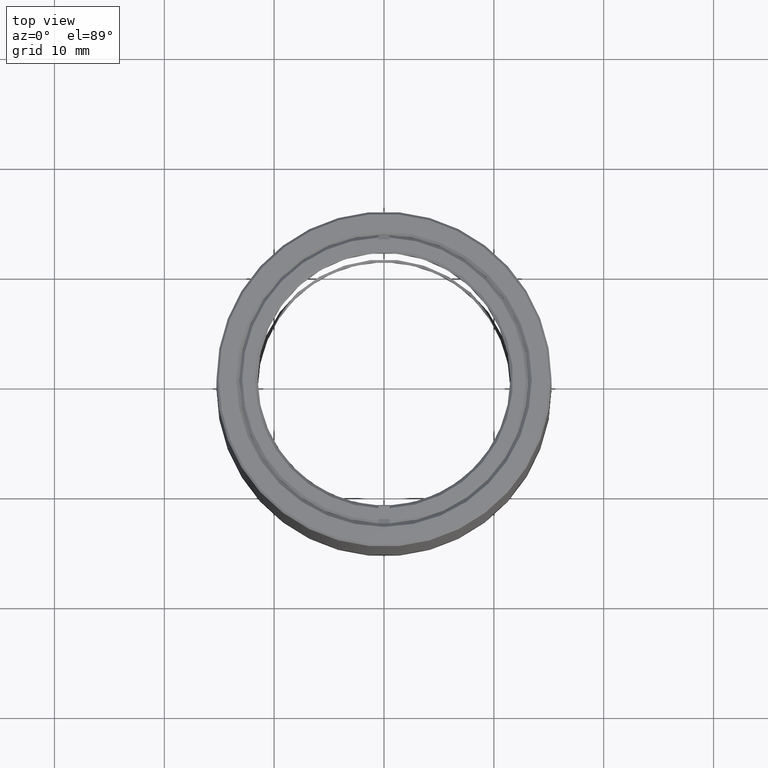
[diagram: clean part render]
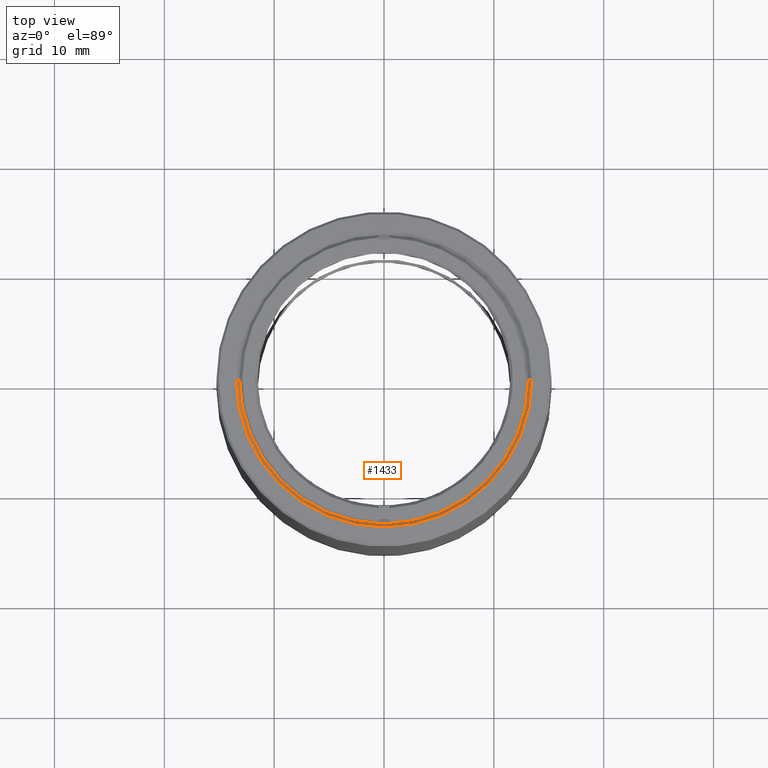
[diagram: same view with one face highlighted and labeled with its STEP entity id]
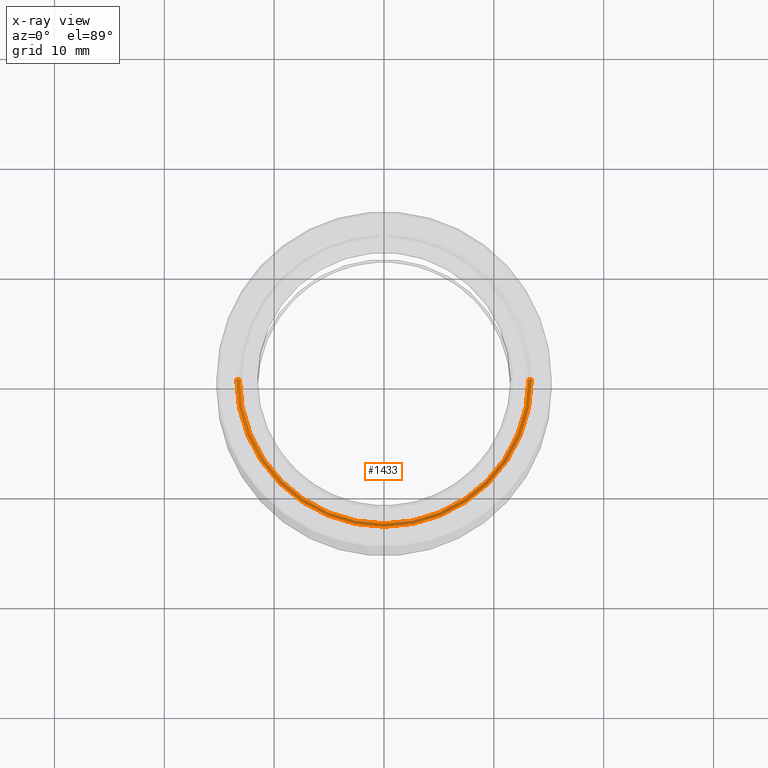
[diagram: x-ray of the same camera — body ghosted, the highlighted face saturated]
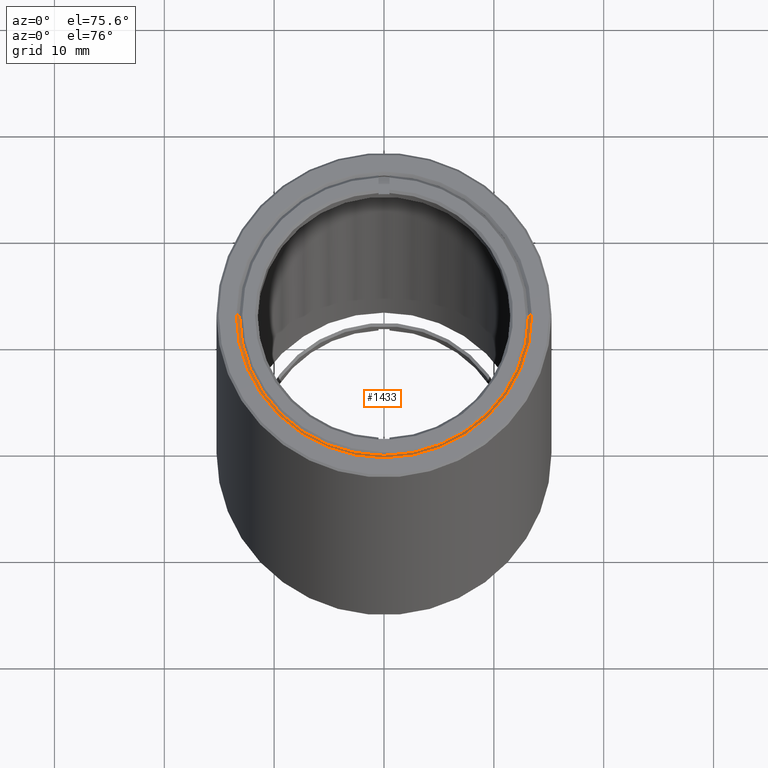
[diagram: same view with one face highlighted and labeled with its STEP entity id]
A machine part, top view. The second image highlights one B-rep face of the part: STEP entity #1433.
The next image is the same camera in x-ray: the body ghosted, the highlighted face saturated — about 0% of this face is hidden behind the body in this view.
A second angle (auxiliary view) of the same face is appended — the face is thin or edge-on in the first view.
In plain terms, the highlighted conical surface has half-angle 45 deg.
Its self-contained STEP definition (entity closure, byte-faithful):
#11 = CARTESIAN_POINT ( 'NONE',  ( 13.45000000000000284, -1.216263278479431880E-30, 6.350000000000003197 ) ) ;
#59 = CIRCLE ( 'NONE', #1093, 13.14999999999999858 ) ;
#80 = CONICAL_SURFACE ( 'NONE', #1130, 13.45000000000000284, 0.7853981633974425058 ) ;
#200 = VECTOR ( 'NONE', #2090, 1000.000000000000000 ) ;
#380 = DIRECTION ( 'NONE',  ( -1.224646799147353207E-16, -0.000000000000000000, 1.000000000000000000 ) ) ;
#436 = VERTEX_POINT ( 'NONE', #11 ) ;
#501 = DIRECTION ( 'NONE',  ( 1.224646799147353207E-16, 0.000000000000000000, -1.000000000000000000 ) ) ;
#671 = EDGE_CURVE ( 'NONE', #436, #1540, #2047, .T. ) ;
#681 = CARTESIAN_POINT ( 'NONE',  ( -7.776507174585742453E-16, -1.216263278479431880E-30, 6.350000000000001421 ) ) ;
#743 = CARTESIAN_POINT ( 'NONE',  ( -13.45000000000000284, -1.647149944853191766E-15, 6.349999999999999645 ) ) ;
#860 = ORIENTED_EDGE ( 'NONE', *, *, #2103, .F. ) ;
#878 = CARTESIAN_POINT ( 'NONE',  ( -13.14999999999999858, -1.628780242865981139E-15, 6.049999999999990941 ) ) ;
#983 = AXIS2_PLACEMENT_3D ( 'NONE', #1260, #501, #2253 ) ;
#1031 = FACE_OUTER_BOUND ( 'NONE', #1092, .T. ) ;
#1092 = EDGE_LOOP ( 'NONE', ( #2459, #860, #2380, #1155 ) ) ;
#1093 = AXIS2_PLACEMENT_3D ( 'NONE', #1555, #380, #1936 ) ;
#1098 = DIRECTION ( 'NONE',  ( -1.224646799147353207E-16, 0.000000000000000000, 1.000000000000000000 ) ) ;
#1130 = AXIS2_PLACEMENT_3D ( 'NONE', #681, #1098, #1276 ) ;
#1155 = ORIENTED_EDGE ( 'NONE', *, *, #671, .F. ) ;
#1245 = LINE ( 'NONE', #1626, #2300 ) ;
#1254 = VERTEX_POINT ( 'NONE', #878 ) ;
#1260 = CARTESIAN_POINT ( 'NONE',  ( -7.776507174585742453E-16, -1.216263278479431880E-30, 6.350000000000001421 ) ) ;
#1276 = DIRECTION ( 'NONE',  ( -1.000000000000000000, -1.224646799147353454E-16, -1.289757231209521657E-16 ) ) ;
#1333 = CARTESIAN_POINT ( 'NONE',  ( 13.14999999999999858, -1.216263278479431880E-30, 6.049999999999994493 ) ) ;
#1346 = CARTESIAN_POINT ( 'NONE',  ( -13.45000000000000284, -1.647149944853191766E-15, 6.349999999999999645 ) ) ;
#1433 = ADVANCED_FACE ( 'NONE', ( #1031 ), #80, .F. ) ;
#1487 = VERTEX_POINT ( 'NONE', #1333 ) ;
#1540 = VERTEX_POINT ( 'NONE', #1346 ) ;
#1555 = CARTESIAN_POINT ( 'NONE',  ( -7.409113134841524978E-16, -1.216263278479431880E-30, 6.049999999999992717 ) ) ;
#1626 = CARTESIAN_POINT ( 'NONE',  ( 13.45000000000000284, -1.216263278479431880E-30, 6.350000000000003197 ) ) ;
#1860 = EDGE_CURVE ( 'NONE', #1254, #1540, #2501, .T. ) ;
#1936 = DIRECTION ( 'NONE',  ( 1.000000000000000000, 1.224646799147352961E-16, 1.319181350552705260E-16 ) ) ;
#2047 = CIRCLE ( 'NONE', #983, 13.45000000000000284 ) ;
#2090 = DIRECTION ( 'NONE',  ( -0.7071067811865435759, -8.659560562354883554E-17, 0.7071067811865515695 ) ) ;
#2103 = EDGE_CURVE ( 'NONE', #1254, #1487, #59, .T. ) ;
#2191 = EDGE_CURVE ( 'NONE', #1487, #436, #1245, .T. ) ;
#2200 = DIRECTION ( 'NONE',  ( 0.7071067811865433539, 0.000000000000000000, 0.7071067811865517916 ) ) ;
#2253 = DIRECTION ( 'NONE',  ( 1.000000000000000000, 1.224646799147353454E-16, 1.289757231209521657E-16 ) ) ;
#2300 = VECTOR ( 'NONE', #2200, 1000.000000000000000 ) ;
#2380 = ORIENTED_EDGE ( 'NONE', *, *, #1860, .T. ) ;
#2459 = ORIENTED_EDGE ( 'NONE', *, *, #2191, .F. ) ;
#2501 = LINE ( 'NONE', #743, #200 ) ;